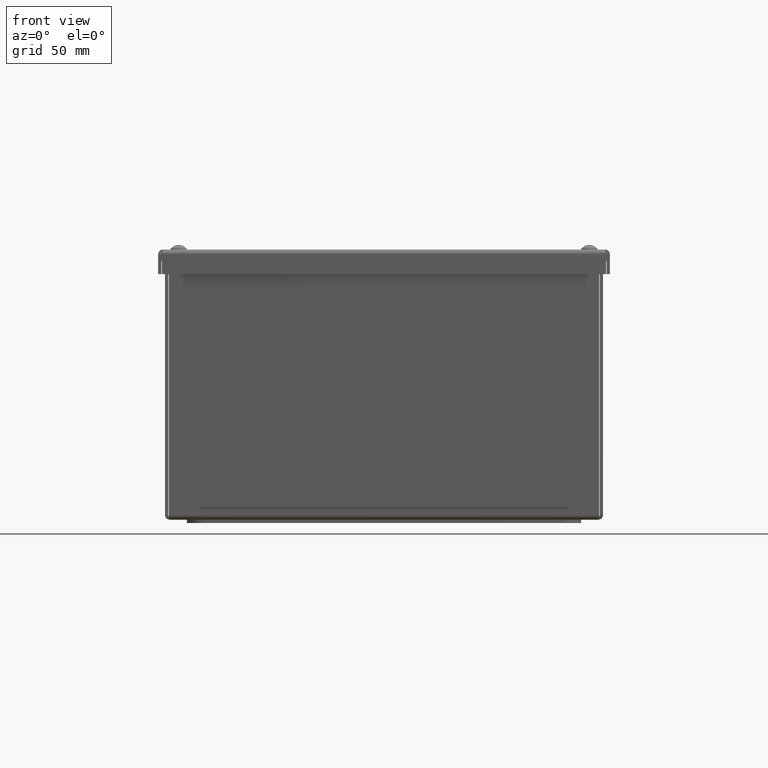
[diagram: clean part render]
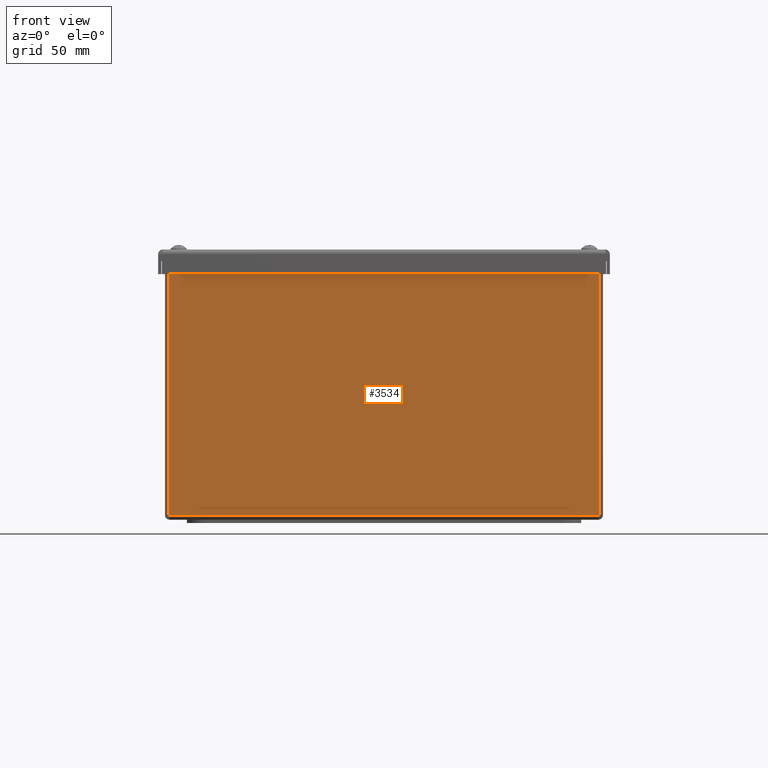
[diagram: same view with one face highlighted and labeled with its STEP entity id]
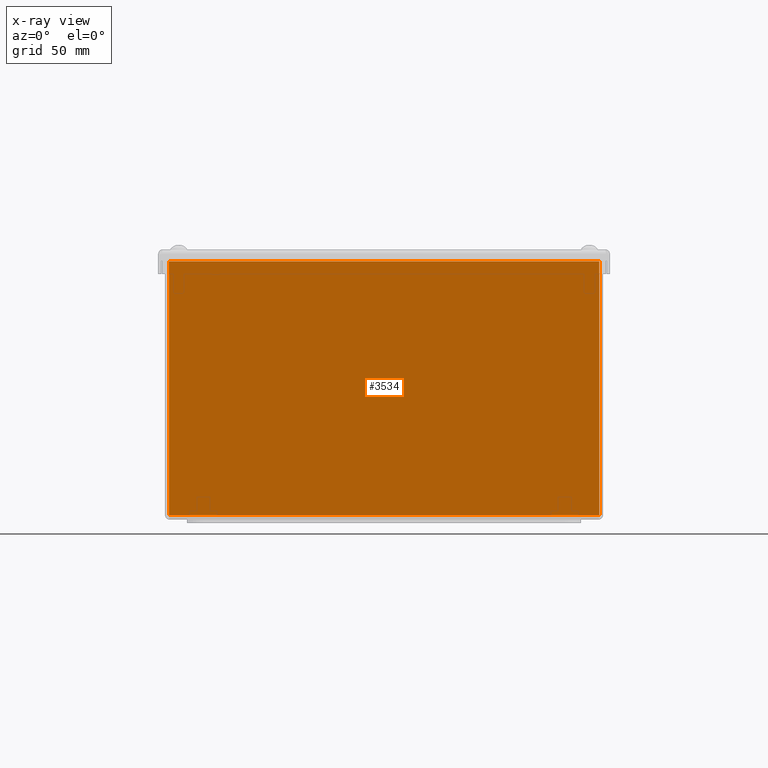
[diagram: x-ray of the same camera — body ghosted, the highlighted face saturated]
A machine part, front view. The second image highlights one B-rep face of the part: STEP entity #3534.
The next image is the same camera in x-ray: the body ghosted, the highlighted face saturated — about 0% of this face is hidden behind the body in this view.
In plain terms, the highlighted planar face has unit normal (0, 1, 0).
Its self-contained STEP definition (entity closure, byte-faithful):
#3334=CARTESIAN_POINT('',(-4.914951456543961,-4.999999999999949,5.894750000000003));
#3335=VERTEX_POINT('',#3334);
#3343=CARTESIAN_POINT('',(4.914951456543959,-4.999999999999948,5.894750000000003));
#3344=VERTEX_POINT('',#3343);
#3345=CARTESIAN_POINT('',(4.914951456543959,-4.999999999999947,5.894750000000004));
#3346=DIRECTION('',(-1.0,0.0,0.0));
#3347=VECTOR('',#3346,9.829902913087921);
#3348=LINE('',#3345,#3347);
#3349=EDGE_CURVE('',#3344,#3335,#3348,.T.);
#3504=CARTESIAN_POINT('',(-2.282370E-016,-4.999999999999973,3.019588212685387));
#3505=DIRECTION('',(0.0,1.0,0.0));
#3506=DIRECTION('',(1.0,0.0,0.0));
#3507=AXIS2_PLACEMENT_3D('',#3504,#3505,#3506);
#3508=PLANE('',#3507);
#3509=ORIENTED_EDGE('',*,*,#3349,.T.);
#3510=CARTESIAN_POINT('',(-4.91495145654396,-4.999999999999999,0.105250000000001));
#3511=VERTEX_POINT('',#3510);
#3512=CARTESIAN_POINT('',(-4.914951456543959,-4.999999999999998,0.105250000000001));
#3513=DIRECTION('',(0.0,0.0,1.0));
#3514=VECTOR('',#3513,5.789500000000002);
#3515=LINE('',#3512,#3514);
#3516=EDGE_CURVE('',#3511,#3335,#3515,.T.);
#3517=ORIENTED_EDGE('',*,*,#3516,.F.);
#3518=CARTESIAN_POINT('',(4.914951456543959,-4.999999999999998,0.105250000000001));
#3519=VERTEX_POINT('',#3518);
#3520=CARTESIAN_POINT('',(-4.91495145654396,-4.999999999999999,0.105250000000001));
#3521=DIRECTION('',(1.0,0.0,0.0));
#3522=VECTOR('',#3521,9.829902913087921);
#3523=LINE('',#3520,#3522);
#3524=EDGE_CURVE('',#3511,#3519,#3523,.T.);
#3525=ORIENTED_EDGE('',*,*,#3524,.T.);
#3526=CARTESIAN_POINT('',(4.914951456543959,-4.999999999999947,5.894750000000003));
#3527=DIRECTION('',(0.0,0.0,-1.0));
#3528=VECTOR('',#3527,5.789500000000002);
#3529=LINE('',#3526,#3528);
#3530=EDGE_CURVE('',#3344,#3519,#3529,.T.);
#3531=ORIENTED_EDGE('',*,*,#3530,.F.);
#3532=EDGE_LOOP('',(#3509,#3517,#3525,#3531));
#3533=FACE_OUTER_BOUND('',#3532,.T.);
#3534=ADVANCED_FACE('',(#3533),#3508,.F.);